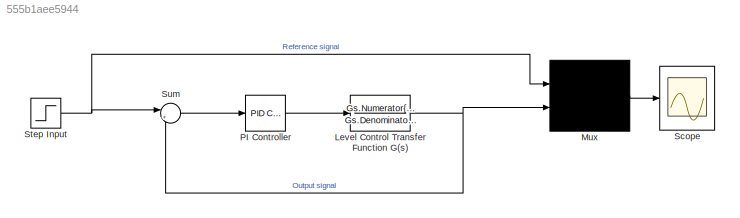
MODEL slx_555b1aee5944
KIND model
CONFIG AbsTol = auto
CONFIG EnableMultiTasking = off
CONFIG FixedStep = auto
CONFIG MaxStep = auto
CONFIG MinStep = auto
CONFIG RelTol = 1e-3
CONFIG SampleTimeConstraint = Unconstrained
CONFIG Solver = VariableStepAuto
CONFIG SolverName = VariableStepAuto
CONFIG StartTime = 0.0
CONFIG StopTime = time
BLOCK [TransferFcn] Level Control Transfer Function G(s)
  Denominator = Gs.Denominator{1,1}
  Numerator = Gs.Numerator{1,1}
BLOCK [Mux] Mux
  DisplayOption = signals
  Inputs = 2
  Ports = [2, 1]
BLOCK [Reference] PI Controller  REF=simulink/Continuous/PID Controller
  Ports = [1, 1]
  SourceBlock = simulink/Continuous/PID Controller
  SourceProductBaseCode = SL
  SourceProductName = Simulink
  SourceType = PID 1dof
BLOCK [Scope] Scope
  Floating = off
  NumInputPorts = 1
  Ports = [1]
  ScopeSpecificationString = Simulink.scopes.TimeScopeBlockCfg('CurrentConfiguration', extmgr.ConfigurationSet(extmgr.Configuration('Core','General UI',true),extmgr.Configuration('Core','Source UI',true),extmgr.Configuration('Sources','WiredSimulink',true,'DataLogging',true,'DataLoggingVariableName','PIResponse','DataLoggingSaveFormat','StructureWithTime'),extmgr.Configuration('Visuals','Time Domain',true,'SerializedDisplays'...<+1506ch>
BLOCK [Step] Step Input
  SampleTime = 0.001
  Time = 0
BLOCK [Sum] Sum
  IconShape = round
  InputSameDT = off
  Inputs = |+-
  OutDataTypeStr = Inherit: Inherit via internal rule
  Ports = [2, 1]
  SaturateOnIntegerOverflow = off
NET Level Control Transfer Function G(s):1 -> Mux:2, Sum:2
LINE Mux:1 -> Scope:1
LINE PI Controller:1 -> Level Control Transfer Function G(s):1
NET Step Input:1 -> Mux:1, Sum:1
LINE Sum:1 -> PI Controller:1
note: NET lines group one-source signal fan-out (src -> all destinations, sorted); 1:1 wires keep LINE
